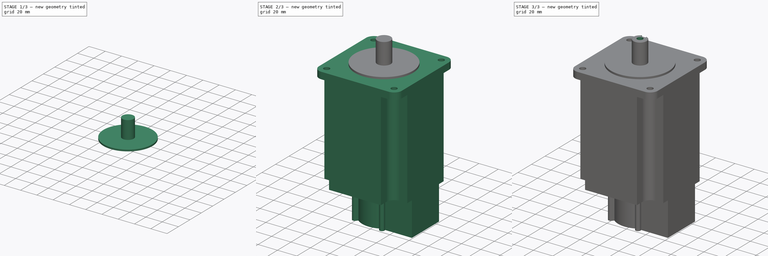
[diagram: build sequence overview — one tinted view per stage of 3, left to right]
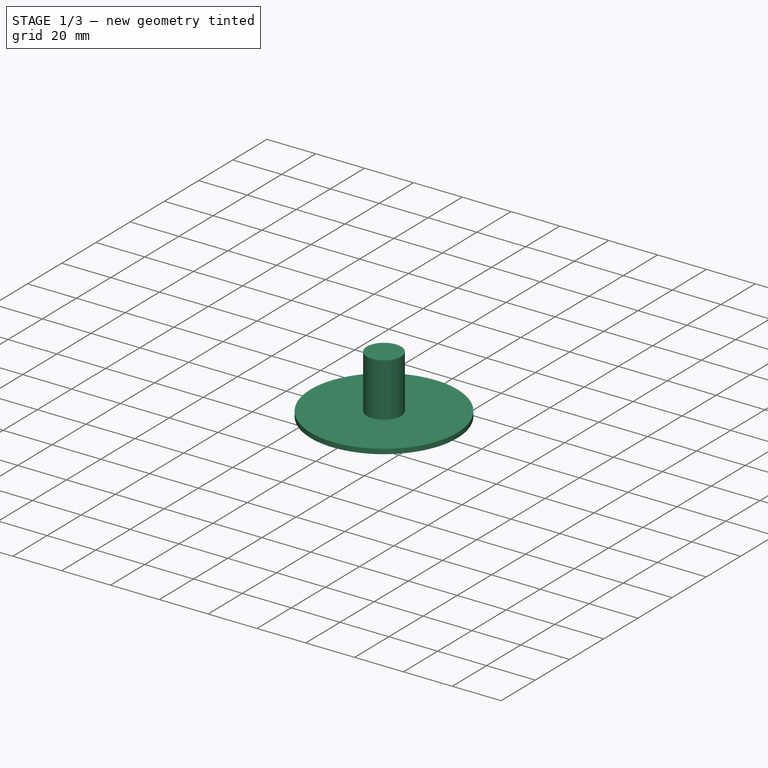
[diagram: stage 1 of 3 — iso view after this stage's code; geometry added in this stage tinted green]
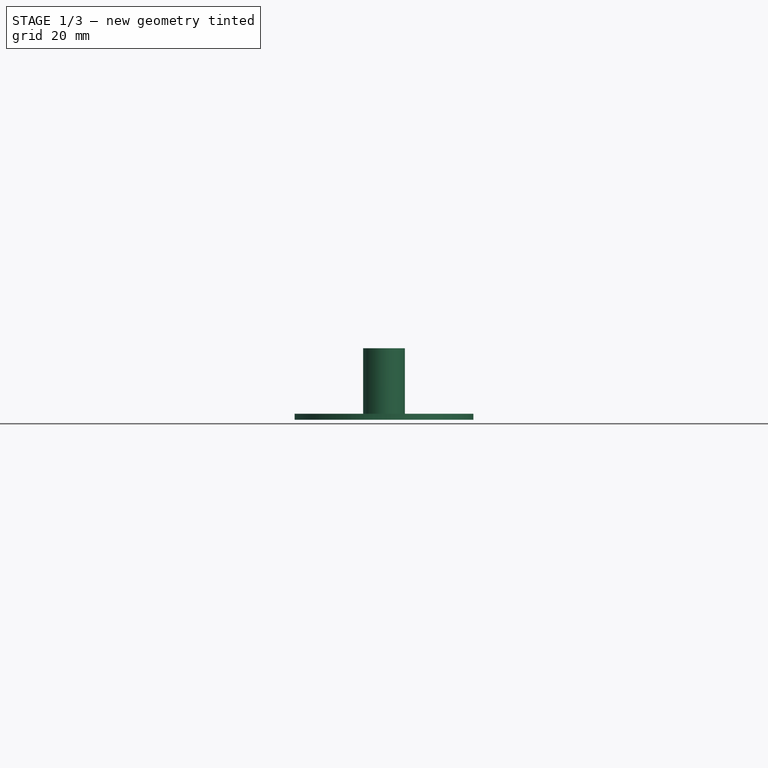
[diagram: stage 1 of 3 — front view after this stage's code; geometry added in this stage tinted green]
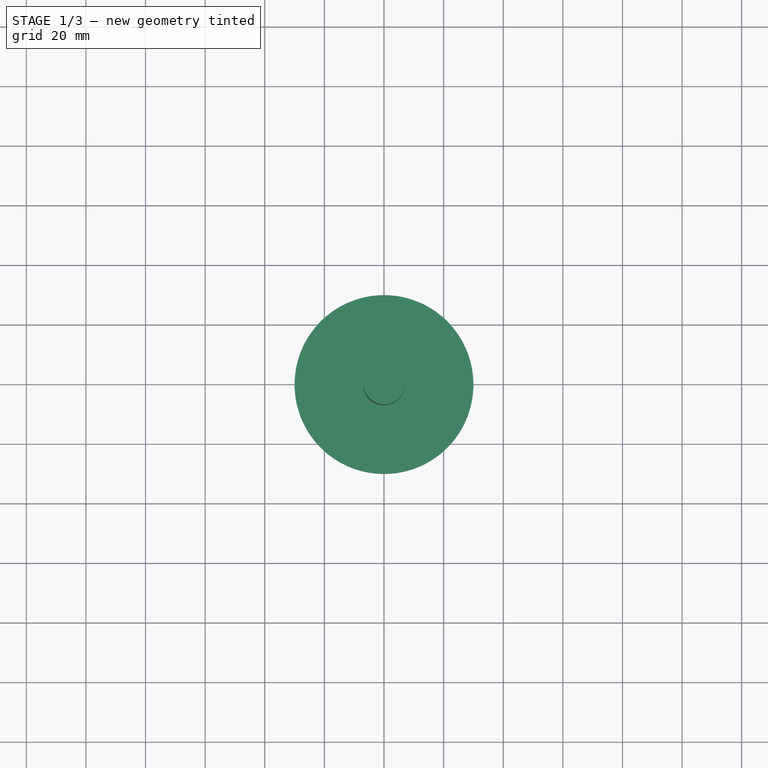
[diagram: stage 1 of 3 — top view after this stage's code; geometry added in this stage tinted green]
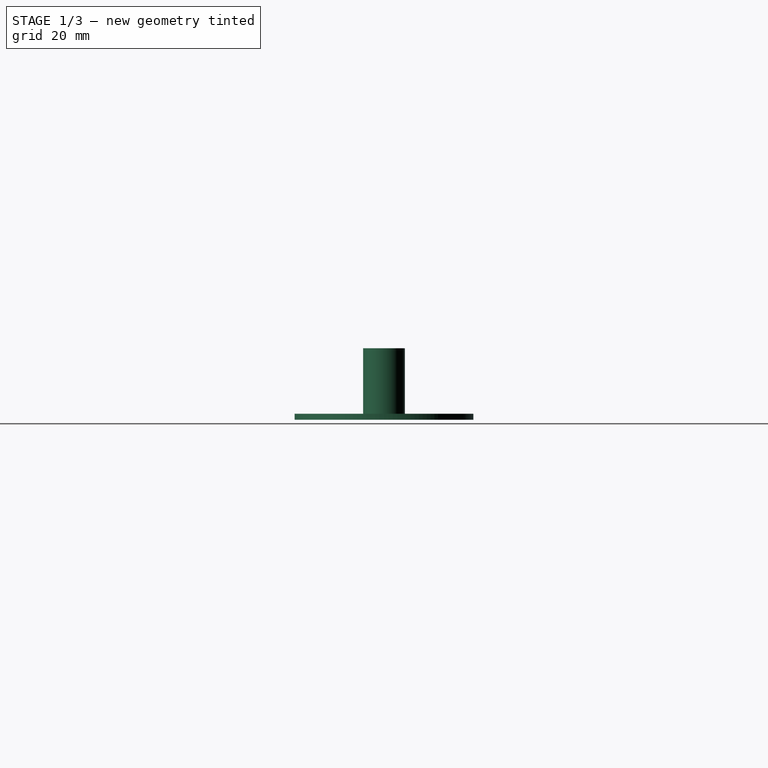
[diagram: stage 1 of 3 — right view after this stage's code; geometry added in this stage tinted green]
FCSTD DOCUMENT  (FreeCAD 0.16R5639 (Git))
Label: Motor-9
License: All rights reserved
LicenseURL: http://en.wikipedia.org/wiki/All_rights_reserved
objects: Sketcher::SketchObject×6, PartDesign::Pad×5, PartDesign::Pocket×1, PartDesign::Chamfer×1
note: 19 computed .brp shape members not serialized (recipe doc carries the construction recipe); baked Part::Feature solids carry a one-line shape summary decoded from their .brp

FEATURE [Sketcher::SketchObject] Sketch002  label="Shaft"
  sketch-geometry (1):
    g0: Circle CenterX=0 CenterY=0 CenterZ=0 NormalX=0 NormalY=0 NormalZ=1 Radius=7
  constraints (2):
    c: Coincident(g-1,g0)
    c: Radius(g0) = 7
FEATURE [PartDesign::Pad] Pad
  Length = 22
  Length2 = 100
  Sketch = -> Sketch002
  Type = 0
FEATURE [Sketcher::SketchObject] Sketch001
  Placement = pos=(0,0,0) rot=(1,0,0;3.14159rad)
  Support = -> Pad [Face2]
  sketch-geometry (1):
    g0: Circle CenterX=0 CenterY=0 CenterZ=0 NormalX=0 NormalY=0 NormalZ=1 Radius=30
  constraints (2):
    c: Coincident(g-1,g0)
    c: Radius(g0) = 30
FEATURE [PartDesign::Pad] Pad001
  Length = 2
  Length2 = 100
  Sketch = -> Sketch001
  Type = 0
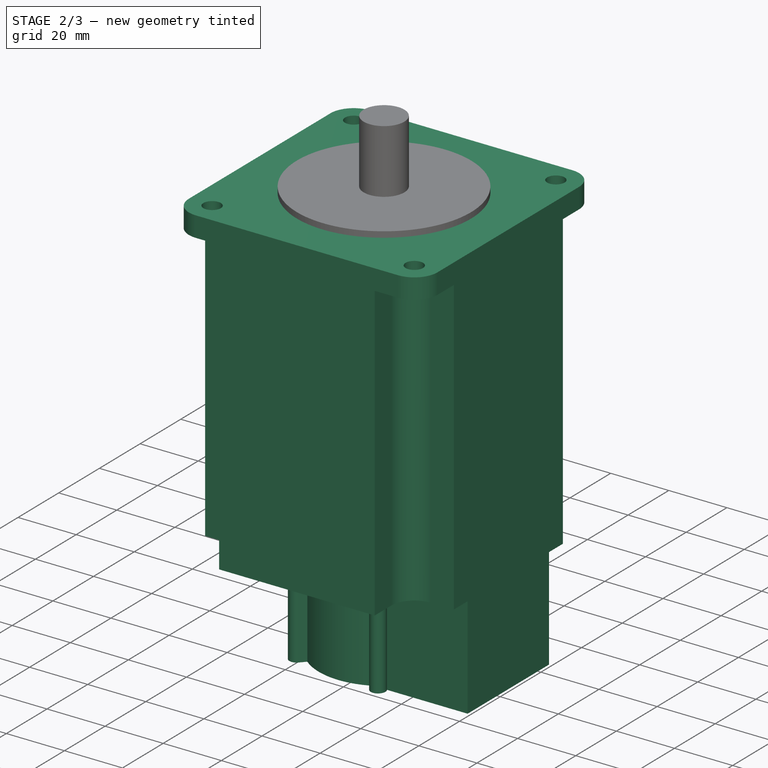
[diagram: stage 2 of 3 — iso view after this stage's code; geometry added in this stage tinted green]
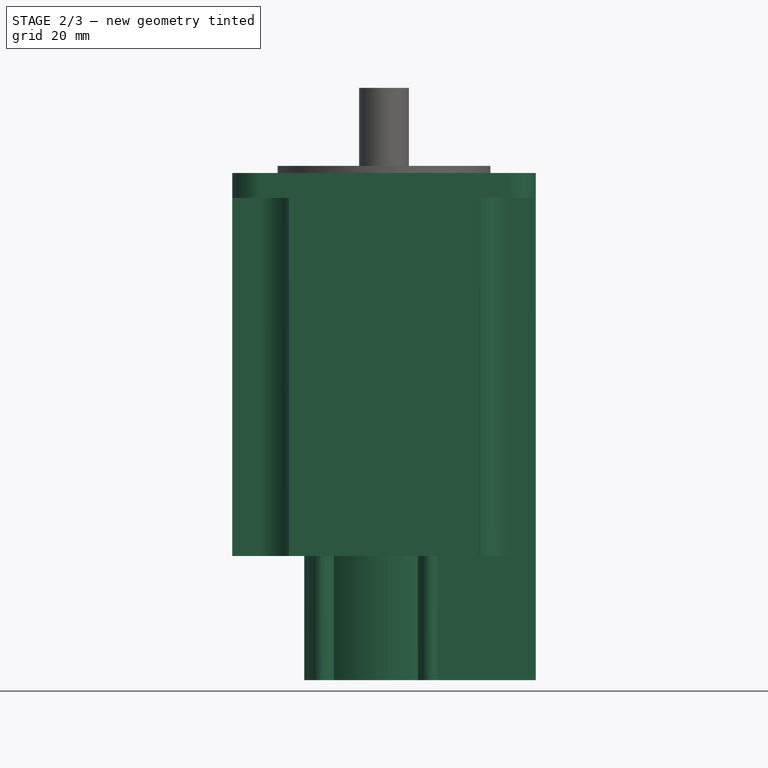
[diagram: stage 2 of 3 — front view after this stage's code; geometry added in this stage tinted green]
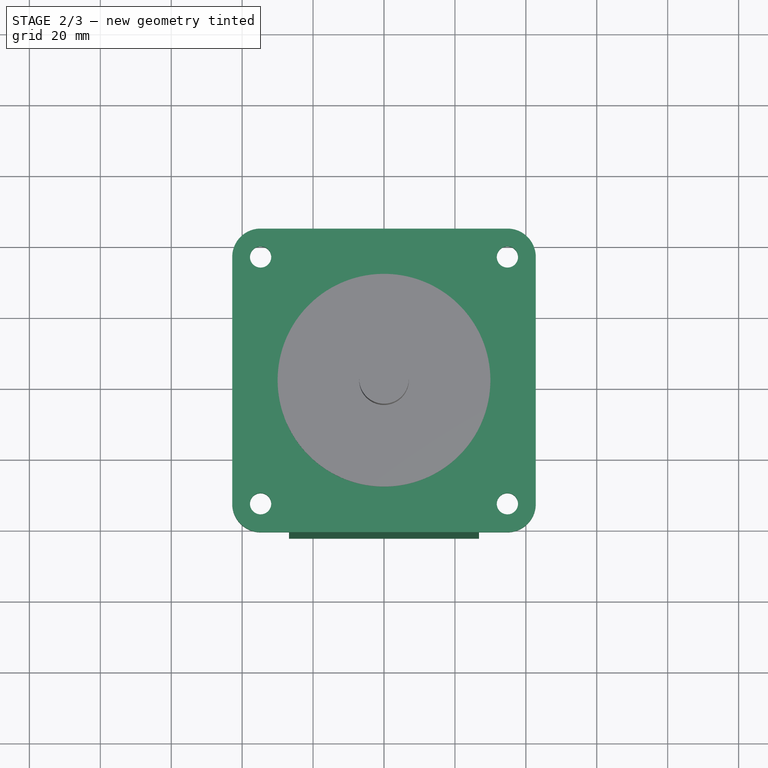
[diagram: stage 2 of 3 — top view after this stage's code; geometry added in this stage tinted green]
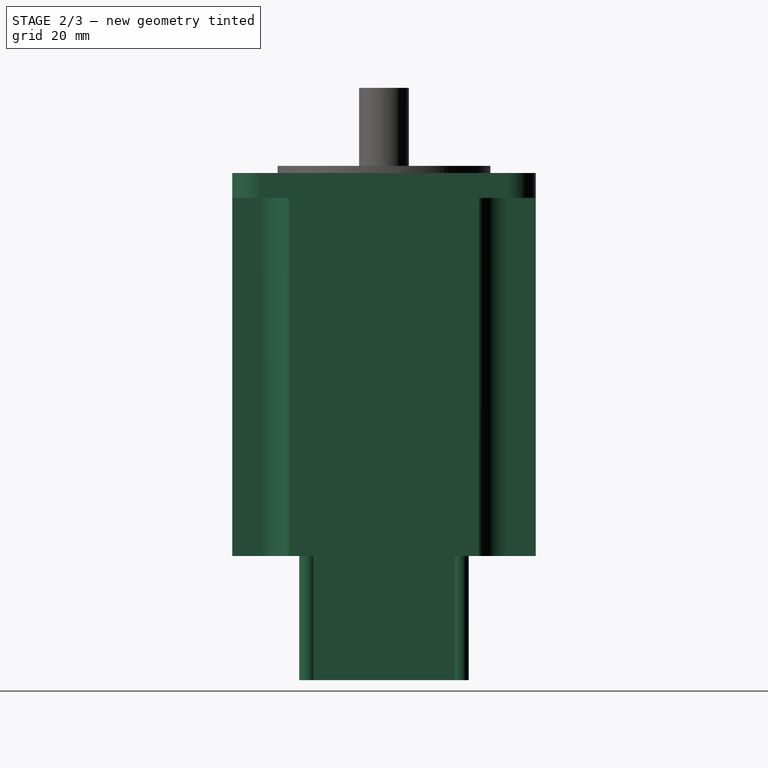
[diagram: stage 2 of 3 — right view after this stage's code; geometry added in this stage tinted green]
FEATURE [Sketcher::SketchObject] Sketch
  Placement = pos=(0,0,-2) rot=(1,0,0;3.14159rad)
  Support = -> Pad001 [Face5]
  sketch-geometry (12):
    g0: ArcOfCircle CenterX=-34.8 CenterY=34.8 CenterZ=0 NormalX=0 NormalY=0 NormalZ=1 Radius=7.99999 StartAngle=1.5708 EndAngle=3.14159
    g1: ArcOfCircle CenterX=34.8 CenterY=34.8 CenterZ=0 NormalX=0 NormalY=0 NormalZ=1 Radius=7.99999 StartAngle=1.67636e-06 EndAngle=1.5708
    g2: ArcOfCircle CenterX=-34.8 CenterY=-34.8 CenterZ=0 NormalX=0 NormalY=0 NormalZ=1 Radius=7.99999 StartAngle=3.1416 EndAngle=4.71239
    g3: ArcOfCircle CenterX=34.8 CenterY=-34.8 CenterZ=0 NormalX=0 NormalY=0 NormalZ=1 Radius=7.99999 StartAngle=4.71239 EndAngle=6.28318
    g4: LineSegment StartX=-42.8 StartY=34.8 StartZ=0 EndX=-42.8 EndY=-34.8 EndZ=0
    g5: LineSegment StartX=-34.8 StartY=42.8 StartZ=0 EndX=34.8 EndY=42.8 EndZ=0
    g6: LineSegment StartX=42.8 StartY=34.8 StartZ=0 EndX=42.8 EndY=-34.8 EndZ=0
    g7: LineSegment StartX=-34.8 StartY=-42.8 StartZ=0 EndX=34.8 EndY=-42.8 EndZ=0
    g8: Circle CenterX=-34.8 CenterY=34.8 CenterZ=0 NormalX=0 NormalY=0 NormalZ=1 Radius=3
    g9: Circle CenterX=34.8 CenterY=34.8 CenterZ=0 NormalX=0 NormalY=0 NormalZ=1 Radius=3
    g10: Circle CenterX=34.8 CenterY=-34.8 CenterZ=0 NormalX=0 NormalY=0 NormalZ=1 Radius=3
    g11: Circle CenterX=-34.8 CenterY=-34.8 CenterZ=0 NormalX=0 NormalY=0 NormalZ=1 Radius=3
  constraints (36):
    c: Equal(g0,g1)
    c: Equal(g1,g3)
    c: Equal(g3,g2)
    c: Symmetric(g2,g3,g-2)
    c: Horizontal(g5)
    c: Vertical(g6)
    c: Horizontal(g7)
    c: Vertical(g4)
    c: Coincident(g0,g4)
    c: Coincident(g2,g4)
    c: Coincident(g1,g5)
    c: Coincident(g6,g1)
    c: Coincident(g3,g6)
    c: Equal(g4,g5)
    c: Equal(g5,g6)
    c: Equal(g7,g6)
    c: Coincident(g2,g7)
    c: Tangent(g2,g7)
    c: Tangent(g4,g0)
    c: Tangent(g5,g1)
    c: Tangent(g6,g1)
    c: Tangent(g0,g5)
    c: Tangent(g3,g6)
    c: DistanceX(g0,g1) = 85.6
    c: Symmetric(g0,g2,g-1)
    c: Coincident(g2,g11)
    c: Coincident(g8,g0)
    c: Coincident(g9,g1)
    c: Coincident(g3,g10)
    c: Equal(g8,g9)
    c: Equal(g9,g10)
    c: Equal(g10,g11)
    c: Radius(g10) = 3
    c: Coincident(g7,g3)
    c: Tangent(g7,g3)
    c: DistanceY(g3,g1) = 69.6
FEATURE [PartDesign::Pad] Pad002
  Length = 7
  Length2 = 100
  Sketch = -> Sketch
  Type = 0
FEATURE [Sketcher::SketchObject] Sketch003
  Placement = pos=(0,0,-9) rot=(1,0,0;3.14159rad)
  Support = -> Pad002 [Face18]
  sketch-geometry (16):
    g0: ArcOfCircle CenterX=-34.8 CenterY=34.8 CenterZ=0 NormalX=0 NormalY=0 NormalZ=1 Radius=8 StartAngle=4.71239 EndAngle=6.28319
    g1: ArcOfCircle CenterX=34.8 CenterY=34.8 CenterZ=0 NormalX=0 NormalY=0 NormalZ=1 Radius=8 StartAngle=3.14159 EndAngle=4.71239
    g2: ArcOfCircle CenterX=34.8 CenterY=-34.8 CenterZ=0 NormalX=0 NormalY=0 NormalZ=1 Radius=8 StartAngle=1.5708 EndAngle=3.14159
    g3: ArcOfCircle CenterX=-34.8 CenterY=-34.8 CenterZ=0 NormalX=0 NormalY=0 NormalZ=1 Radius=8 StartAngle=6.28318 EndAngle=7.85398
    g4: LineSegment StartX=-26.8 StartY=34.8 StartZ=0 EndX=-26.8 EndY=42.8 EndZ=0
    g5: LineSegment StartX=-26.8 StartY=42.8 StartZ=0 EndX=26.8 EndY=42.8 EndZ=0
    g6: LineSegment StartX=26.8 StartY=42.8 StartZ=0 EndX=26.8 EndY=34.8 EndZ=0
    g7: LineSegment StartX=34.8 StartY=26.8 StartZ=0 EndX=42.8 EndY=26.8 EndZ=0
    g8: LineSegment StartX=42.8 StartY=26.8 StartZ=0 EndX=42.8 EndY=-26.8 EndZ=0
    g9: LineSegment StartX=42.8 StartY=-26.8 StartZ=0 EndX=34.8 EndY=-26.8 EndZ=0
    g10: LineSegment StartX=-26.8 StartY=-34.8 StartZ=0 EndX=-26.8 EndY=-42.8 EndZ=0
    g11: LineSegment StartX=-26.8 StartY=-42.8 StartZ=0 EndX=26.8 EndY=-42.8 EndZ=0
    g12: LineSegment StartX=26.8 StartY=-42.8 StartZ=0 EndX=26.8 EndY=-34.8 EndZ=0
    g13: LineSegment StartX=-34.8 StartY=26.8 StartZ=0 EndX=-42.8 EndY=26.8 EndZ=0
    g14: LineSegment StartX=-42.8 StartY=26.8 StartZ=0 EndX=-42.8 EndY=-26.8 EndZ=0
    g15: LineSegment StartX=-42.8 StartY=-26.8 StartZ=0 EndX=-34.8 EndY=-26.8 EndZ=0
  constraints (48):
    c: Coincident(g4,g5)
    c: Horizontal(g5)
    c: Coincident(g5,g6)
    c: Vertical(g6)
    c: Coincident(g7,g8)
    c: Vertical(g8)
    c: Coincident(g8,g9)
    c: Horizontal(g9)
    c: Coincident(g10,g11)
    c: Horizontal(g11)
    c: Coincident(g11,g12)
    c: Coincident(g13,g14)
    c: Vertical(g14)
    c: Coincident(g14,g15)
    c: Coincident(g0,g13)
    c: Coincident(g0,g4)
    c: Coincident(g1,g6)
    c: Coincident(g1,g7)
    c: Coincident(g2,g9)
    c: Coincident(g2,g12)
    c: Coincident(g10,g3)
    c: Coincident(g15,g3)
    c: Horizontal(g15)
    c: Vertical(g10)
    c: Vertical(g12)
    c: Horizontal(g7)
    c: Vertical(g4)
    c: Horizontal(g13)
    c: DistanceX(g14,g8) = 85.6
    c: Symmetric(g8,g14,g-2)
    c: Symmetric(g5,g11,g-1)
    c: DistanceY(g11,g5) = 85.6
    c: Tangent(g13,g0)
    c: Tangent(g1,g7)
    c: Tangent(g9,g2)
    c: Tangent(g15,g3)
    c: Equal(g3,g0)
    c: Equal(g0,g1)
    c: Equal(g1,g2)
    c: Symmetric(g1,g0,g-2)
    c: Radius(g3) = 8
    c: Symmetric(g3,g2,g-2)
    c: Symmetric(g3,g0,g-1)
    c: Angle(g3) = 1.5708
    c: Angle(g0) = 1.5708
    c: Angle(g2) = 1.5708
    c: DistanceX(g0,g1) = 69.6
    c: DistanceY(g2,g1) = 69.6
FEATURE [PartDesign::Pad] Pad003
  Length = 101
  Length2 = 100
  Sketch = -> Sketch003
  Type = 0
FEATURE [Sketcher::SketchObject] Sketch006  label="Sketch005"
  Placement = pos=(0,0,-110) rot=(1,0,0;3.14159rad)
  Support = -> Pad003 [Face29]
  sketch-geometry (20):
    g0: LineSegment [constr] StartX=-21.2132 StartY=-21.2132 StartZ=0 EndX=0 EndY=0 EndZ=0
    g1: LineSegment [constr] StartX=-21.2132 StartY=21.2132 StartZ=0 EndX=0 EndY=0 EndZ=0
    g2: ArcOfCircle CenterX=12.9275 CenterY=21.3981 CenterZ=0 NormalX=0 NormalY=0 NormalZ=1 Radius=2.5 StartAngle=5.68971 EndAngle=8.93134
    g3: ArcOfCircle CenterX=12.9275 CenterY=-21.3981 CenterZ=0 NormalX=0 NormalY=0 NormalZ=1 Radius=2.5 StartAngle=3.63503 EndAngle=6.87667
    g4: ArcOfCircle CenterX=-17.6777 CenterY=17.6777 CenterZ=0 NormalX=0 NormalY=0 NormalZ=1 Radius=2.5 StartAngle=0.735377 EndAngle=3.97701
    g5: ArcOfCircle CenterX=0 CenterY=0 CenterZ=0 NormalX=0 NormalY=0 NormalZ=1 Radius=22.5 StartAngle=1.13294 EndAngle=2.25059
    g6: LineSegment StartX=-19.3548 StartY=15.8237 StartZ=0 EndX=-17.4983 EndY=14.1442 EndZ=0
    g7: LineSegment StartX=-15.8237 StartY=19.3548 StartZ=0 EndX=-14.1442 EndY=17.4983 EndZ=0
    g8: LineSegment StartX=10.7257 StartY=22.5823 StartZ=0 EndX=9.53994 EndY=20.3774 EndZ=0
    g9: LineSegment StartX=-17.4983 StartY=-14.1442 StartZ=0 EndX=-19.3548 EndY=-15.8237 EndZ=0
    g10: LineSegment StartX=-14.1442 StartY=-17.4983 StartZ=0 EndX=-15.8237 EndY=-19.3548 EndZ=0
    g11: LineSegment StartX=9.53994 StartY=-20.3774 StartZ=0 EndX=10.7257 EndY=-22.5823 EndZ=0
    g12: Circle [constr] CenterX=0 CenterY=0 CenterZ=0 NormalX=0 NormalY=0 NormalZ=1 Radius=25
    g13: LineSegment StartX=15 StartY=20 StartZ=0 EndX=42.8 EndY=20 EndZ=0
    g14: LineSegment StartX=42.8 StartY=20 StartZ=0 EndX=42.8 EndY=-20 EndZ=0
    g15: LineSegment StartX=42.8 StartY=-20 StartZ=0 EndX=15 EndY=-20 EndZ=0
    g16: ArcOfCircle CenterX=0 CenterY=0 CenterZ=0 NormalX=0 NormalY=0 NormalZ=1 Radius=22.5 StartAngle=2.4618 EndAngle=3.82139
    g17: ArcOfCircle CenterX=-17.6777 CenterY=-17.6777 CenterZ=0 NormalX=0 NormalY=0 NormalZ=1 Radius=2.5 StartAngle=2.30617 EndAngle=5.54781
    g18: Circle [constr] CenterX=0 CenterY=0 CenterZ=0 NormalX=0 NormalY=0 NormalZ=1 Radius=22.5
    g19: ArcOfCircle CenterX=0 CenterY=0 CenterZ=0 NormalX=0 NormalY=0 NormalZ=1 Radius=22.5 StartAngle=4.0326 EndAngle=5.15024
  constraints (62):
    c: Angle(g-1,g0) = 0.785398
    c: PointOnObject(g4,g1)
    c: Coincident(g5,g-1)
    c: Coincident(g6,g4)
    c: Tangent(g4,g6)
    c: Coincident(g7,g4)
    c: Tangent(g4,g7)
    c: Coincident(g5,g7)
    c: Radius(g5) = 22.5
    c: Tangent(g11,g3)
    c: Coincident(g2,g8)
    c: Coincident(g5,g8)
    c: Coincident(g12,g-1)
    c: Radius(g12) = 25
    c: PointOnObject(g4,g12)
    c: PointOnObject(g4,g12)
    c: PointOnObject(g2,g12)
    c: PointOnObject(g2,g12)
    c: PointOnObject(g3,g12)
    c: PointOnObject(g3,g12)
    c: PointOnObject(g10,g12)
    c: PointOnObject(g9,g12)
    c: PointOnObject(g4,g12)
    c: Coincident(g13,g14)
    c: Coincident(g14,g15)
    c: Horizontal(g13)
    c: Horizontal(g15)
    c: Vertical(g14)
    c: Coincident(g2,g13)
    c: Coincident(g15,g3)
    c: Coincident(g16,g-1)
    c: Coincident(g16,g6)
    c: Coincident(g16,g9)
    c: PointOnObject(g17,g0)
    c: PointOnObject(g17,g12)
    c: Coincident(g17,g10)
    c: Coincident(g17,g9)
    c: Tangent(g17,g9)
    c: Tangent(g17,g10)
    c: Radius(g17) = 2.5
    c: Equal(g17,g4)
    c: Equal(g4,g2)
    c: Equal(g2,g3)
    c: Coincident(g11,g3)
    c: Radius(g18) = 22.5
    c: Coincident(g18,g19)
    c: PointOnObject(g2,g12)
    c: Coincident(g19,g11)
    c: Coincident(g10,g19)
    c: PointOnObject(g11,g18)
    c: PointOnObject(g3,g12)
    c: Symmetric(g3,g2,g-1)
    c: Tangent(g8,g2)
    c: Equal(g19,g16)
    c: DistanceY(g3,g2) = 40
    c: Angle(g1,g-1) = 0.785398
    c: Coincident(g1,g-1)
    c: Coincident(g1,g0)
    c: Coincident(g-1,g18)
    c: Distance(g0) = 30
    c: Distance(g1) = 30
    c: DistanceX(g-1,g14) = 42.8
FEATURE [PartDesign::Pad] Pad004
  Length = 35
  Length2 = 100
  Sketch = -> Sketch006
  Type = 0
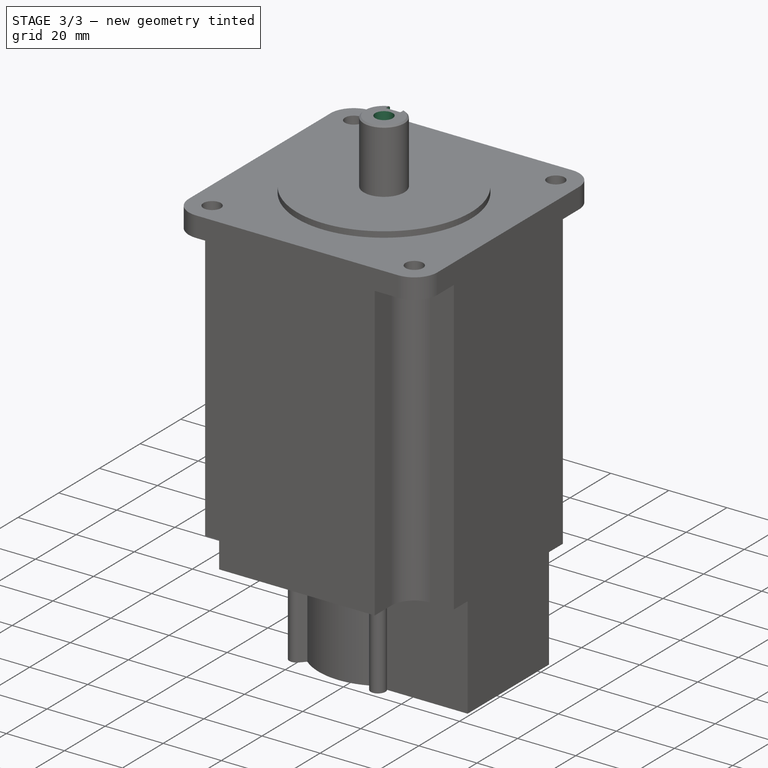
[diagram: stage 3 of 3 — iso view after this stage's code; geometry added in this stage tinted green]
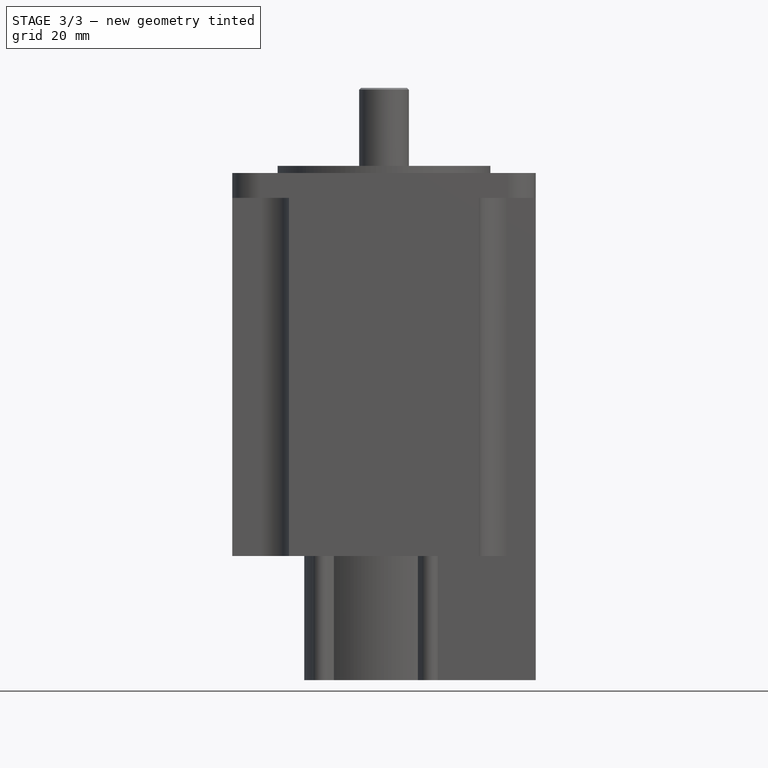
[diagram: stage 3 of 3 — front view after this stage's code; geometry added in this stage tinted green]
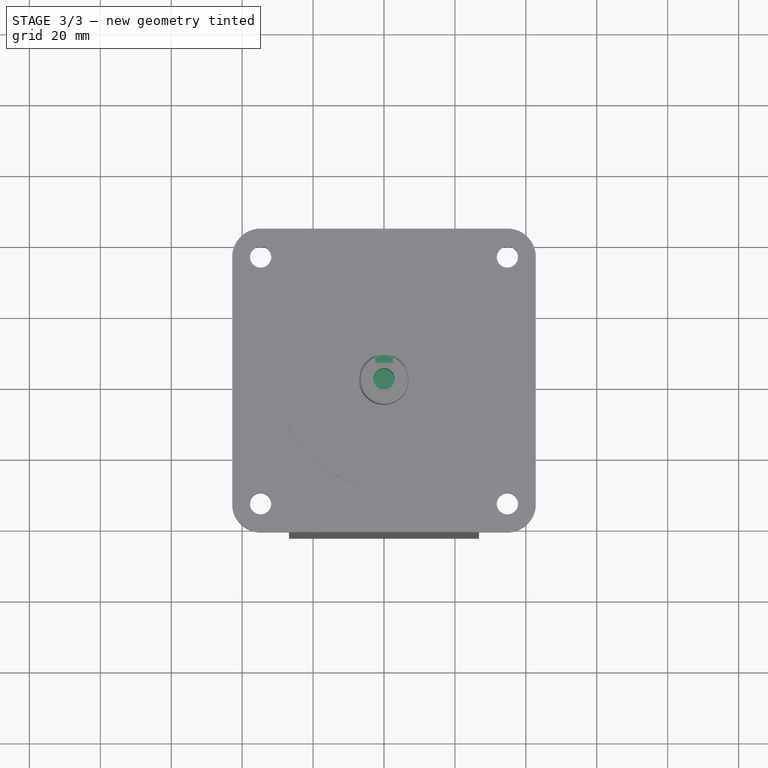
[diagram: stage 3 of 3 — top view after this stage's code; geometry added in this stage tinted green]
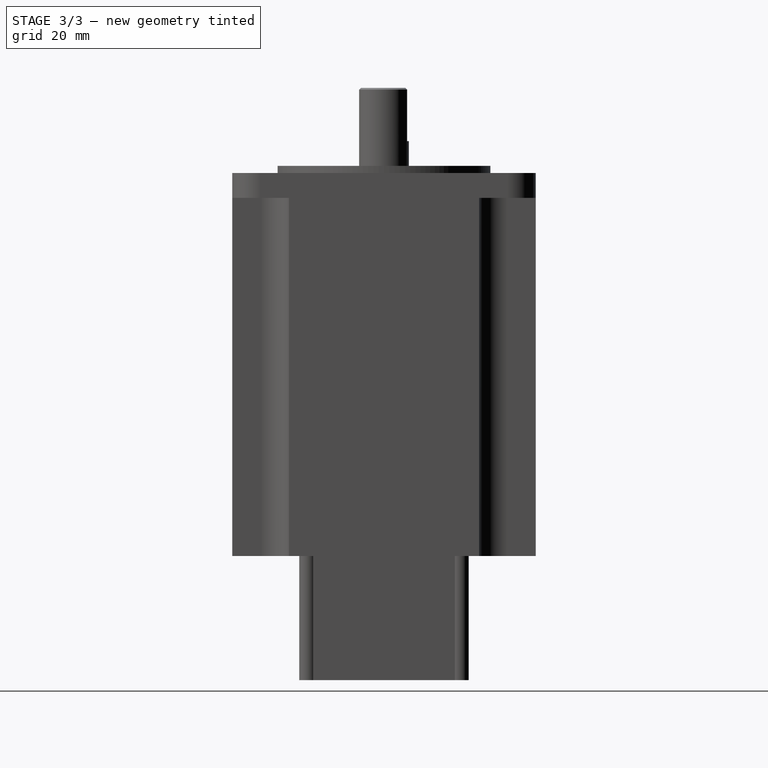
[diagram: stage 3 of 3 — right view after this stage's code; geometry added in this stage tinted green]
FEATURE [Sketcher::SketchObject] Sketch007
  Placement = pos=(0,0,22) rot=(0,0,1;0rad)
  Support = -> Pad004 [Face1]
  sketch-geometry (5):
    g0: Circle CenterX=0 CenterY=0 CenterZ=0 NormalX=0 NormalY=0 NormalZ=1 Radius=3
    g1: LineSegment StartX=-2.5 StartY=9.5 StartZ=0 EndX=2.5 EndY=9.5 EndZ=0
    g2: LineSegment StartX=2.5 StartY=9.5 StartZ=0 EndX=2.5 EndY=4.5 EndZ=0
    g3: LineSegment StartX=2.5 StartY=4.5 StartZ=0 EndX=-2.5 EndY=4.5 EndZ=0
    g4: LineSegment StartX=-2.5 StartY=4.5 StartZ=0 EndX=-2.5 EndY=9.5 EndZ=0
  constraints (14):
    c: Coincident(g-1,g0)
    c: Radius(g0) = 3
    c: Coincident(g1,g2)
    c: Coincident(g2,g3)
    c: Coincident(g3,g4)
    c: Coincident(g4,g1)
    c: Horizontal(g1)
    c: Horizontal(g3)
    c: Vertical(g2)
    c: Vertical(g4)
    c: Symmetric(g3,g2,g-2)
    c: DistanceX(g1,g1) = 5
    c: DistanceY(g2,g1) = 5
    c: DistanceY(g-1,g2) = 4.5
FEATURE [PartDesign::Pocket] Pocket
  Length = 15
  Sketch = -> Sketch007
  Type = 0
FEATURE [PartDesign::Chamfer] Chamfer
  Base = -> Pocket [Edge5]
  Size = 0.5
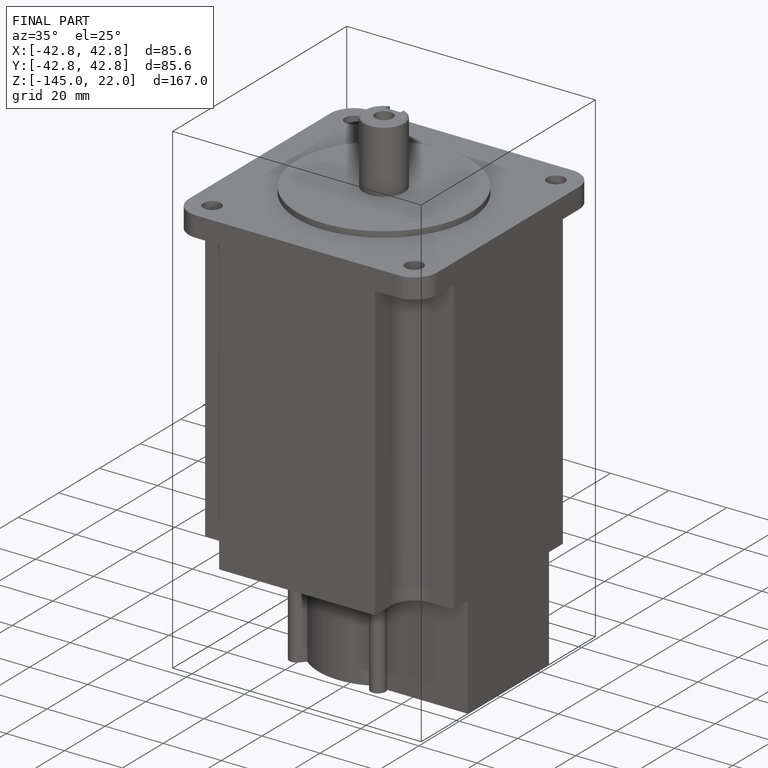
[diagram: finished part — iso view with bounding-box wireframe]
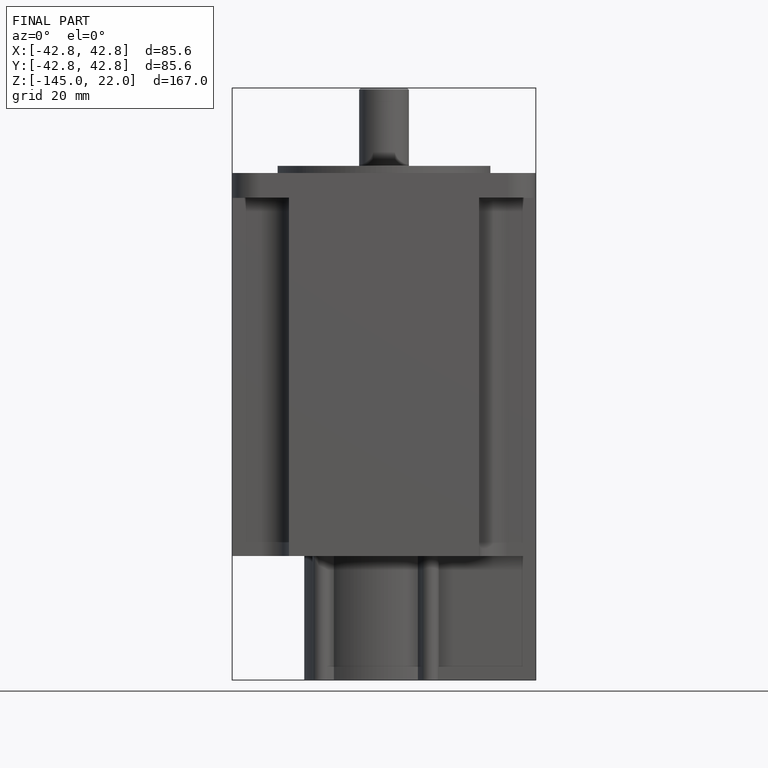
[diagram: finished part — front view with bounding-box wireframe]
